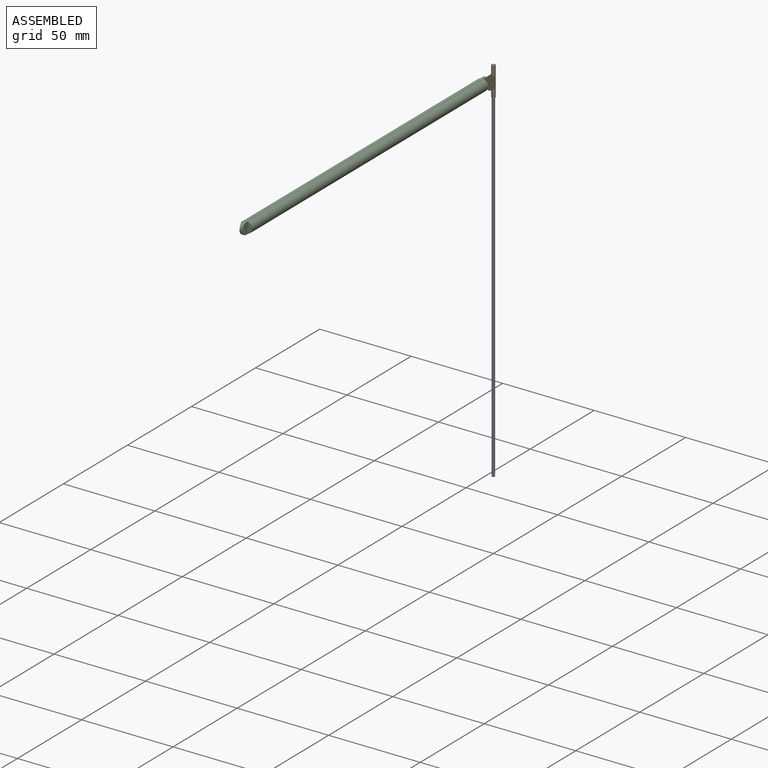
[diagram: assembled view]
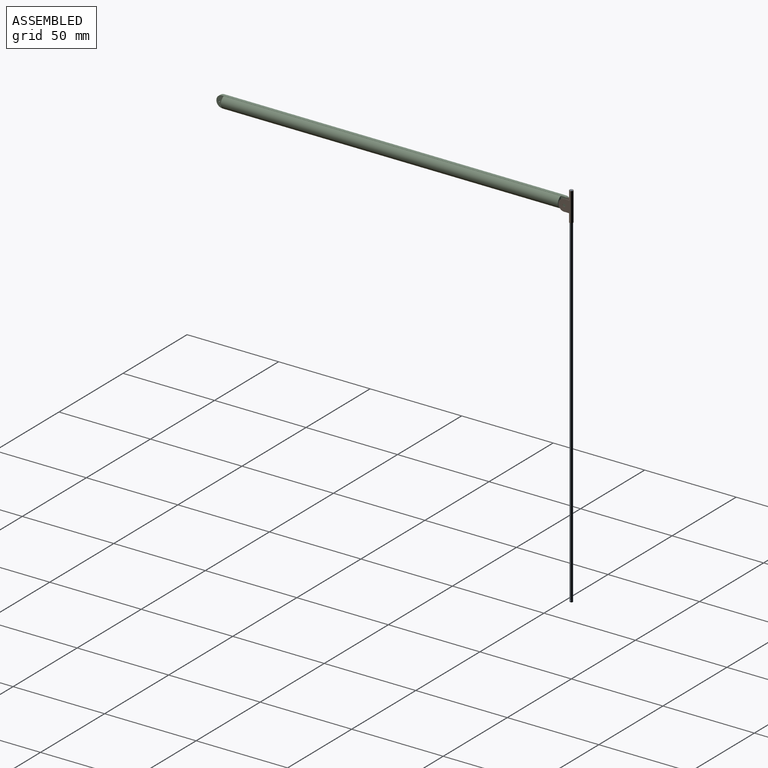
[diagram: assembled view, second angle]
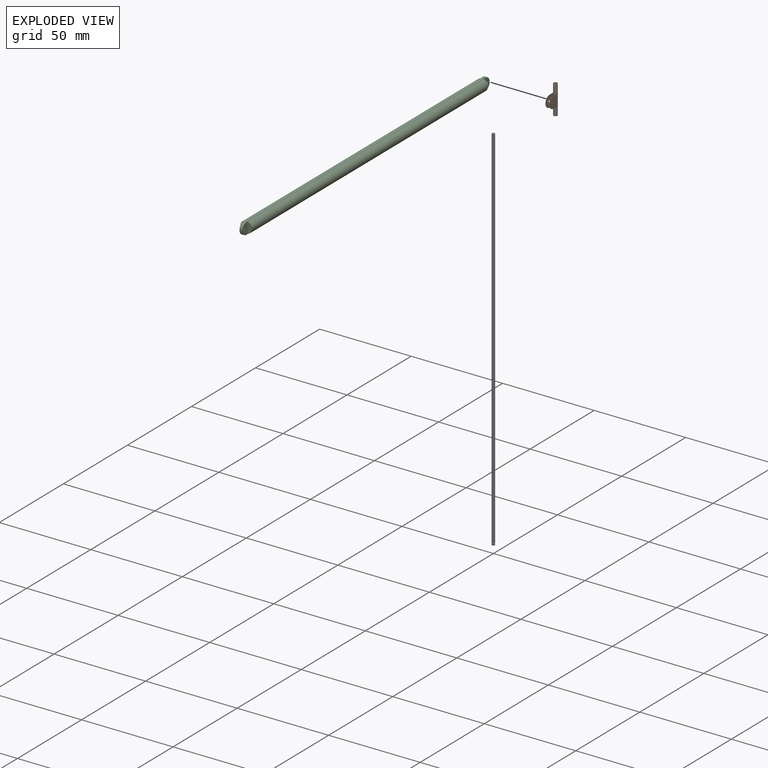
[diagram: exploded view]
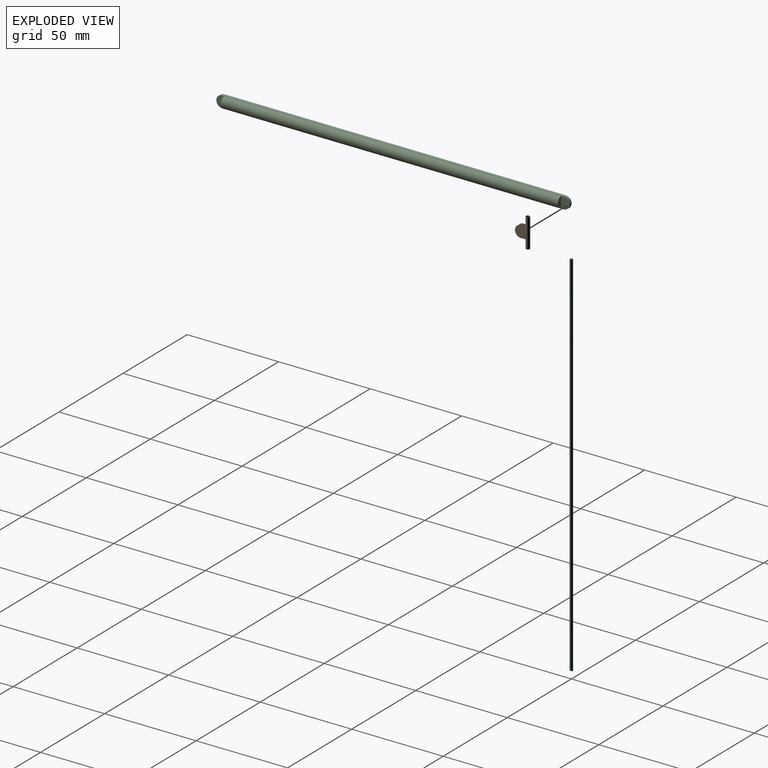
[diagram: exploded view, second angle]
ASSEMBLY  parts=3 mates=5
PART A: 4 faces, bbox 1.6x1.6x203.2 mm
  f0: cylinder r=0.79mm len=203.2mm, axis (0,0,-1), area 1012.4mm2, adj f1,f2,f3
  f1: plane 1.59x1.59mm, normal (0,0,1), area 2mm2, adj f0
  f2: plane 1.59x1.59mm, normal (0,0,-1), area 2mm2, adj f0
  f3: cylinder r=0.4mm len=1.59mm, axis (0,-1,0), area 3.7mm2, adj f0
PART B: 18 faces, bbox 2.1x7.4x15.9 mm
  f0: plane 3.18x0.13mm, normal (0,0,-1), area 0.4mm2, adj f4,f10,f11,f14
  f1: plane 3.18x0.13mm, normal (0,0,1), area 0.4mm2, adj f4,f10,f11,f14
  f2: cylinder r=3.17mm len=6.35mm, axis (-1,0,0), area 1.3mm2, adj f7,f8,f9,f15
  f3: cylinder r=0.92mm len=15.88mm, axis (0,0,-1), area 73.5mm2, adj f5,f6,f12,f13,f14,f15
  f4: cylinder r=1.05mm len=15.88mm, axis (0,0,-1), area 83.6mm2, adj f0,f1,f5,f6,f7,f8,f9,f10
  f5: plane 2.1x2.1mm, normal (0,0,1), area 0.8mm2, adj f3,f4
  f6: plane 2.1x2.1mm, normal (0,0,-1), area 0.8mm2, adj f3,f4
  f7: plane 3.18x0.13mm, normal (0,0,-1), area 0.4mm2, adj f2,f4,f8,f15
  f8: plane 6.35x6.35mm, normal (-1,0,0), area 34mm2, adj f2,f4,f7,f9,f16
  f9: plane 3.18x0.13mm, normal (0,0,1), area 0.4mm2, adj f2,f4,f8,f15
  f10: plane 6.35x6.35mm, normal (1,0,0), area 34mm2, adj f0,f1,f4,f11,f17
  f11: cylinder r=3.17mm len=6.35mm, axis (-1,0,0), area 1.3mm2, adj f0,f1,f10,f14
  f12: plane 1.84x1.05mm, normal (0,0,1), area 0.3mm2, adj f3,f4,f14,f15
  f13: plane 1.84x1.05mm, normal (0,0,-1), area 0.3mm2, adj f3,f4,f14,f15
  f14: plane 6.35x6.35mm, normal (-1,0,0), area 34mm2, adj f0,f1,f3,f11,f12,f13,f17
  f15: plane 6.35x6.35mm, normal (1,0,0), area 34mm2, adj f2,f3,f7,f9,f12,f13,f16
  f16: cylinder r=0.79mm len=1.59mm, axis (1,0,0), area 0.6mm2, adj f8,f15
  f17: cylinder r=0.79mm len=1.59mm, axis (1,0,0), area 0.6mm2, adj f10,f14
PART C: 14 faces, bbox 6.4x6.4x193 mm
  f0: plane 186.64x1.59mm, normal (-1,0,0), area 296.3mm2, adj f1,f5,f6,f7
  f1: cylinder r=3.17mm len=6.35mm, axis (0,1,0), area 15.8mm2, adj f0,f2,f6,f7
  f2: plane 186.64x1.59mm, normal (1,0,0), area 296.3mm2, adj f1,f5,f6,f7
  f3: cylinder r=0.4mm len=1.59mm, axis (0,1,0), area 4mm2, adj f6,f7
  f4: cylinder r=0.4mm len=1.59mm, axis (0,1,0), area 4mm2, adj f6,f7
  f5: cylinder r=3.17mm len=6.35mm, axis (0,1,0), area 15.8mm2, adj f0,f2,f6,f7
  f6: plane 192.99x6.35mm, normal (0,-1,0), area 83.6mm2, adj f0,f1,f2,f3,f4,f5,f11,f12
  f7: plane 192.99x6.35mm, normal (0,1,0), area 83.6mm2, adj f0,f1,f2,f3,f4,f5,f8,f9
  f8: plane 6.15x2.38mm, normal (0,0,-1), area 10.8mm2, adj f7,f10
  f9: plane 6.15x2.38mm, normal (0,0,1), area 10.8mm2, adj f7,f10
  f10: cylinder r=3.17mm len=184.15mm, axis (0,0,-1), area 1541.3mm2, adj f7,f8,f9
  f11: cylinder r=3.17mm len=184.15mm, axis (0,0,-1), area 1541.3mm2, adj f6,f12,f13
  f12: plane 6.15x2.38mm, normal (0,0,1), area 10.8mm2, adj f6,f11
  f13: plane 6.15x2.38mm, normal (0,0,-1), area 10.8mm2, adj f6,f11
PLACE A rot(axis=(0,0,1),90deg) t=(0,0,-187.32)mm
PLACE B at identity fixed
PLACE C rot(axis=(0.58,-0.58,0.58),120deg) t=(-1.71,-6.35,7.94)mm
MATE cylindrical C.f4 <-> B.f2  axis (1,0,0) through (-0.92,-3.17,7.94)mm
MATE planar C.f6 <-> B.f15  axis (1,0,0) through (-0.92,-93.47,7.94)mm
MATE cylindrical A.f0 <-> B.f3  axis (0,0,-1) through (0,0,-85.72)mm
MATE planar A.f0 <-> B.f4  axis (0,0,1) through (0,0,15.88)mm
MATE parallel A.f3 <-> B.f8  axis (1,0,0) through (0,0,-186.24)mm
